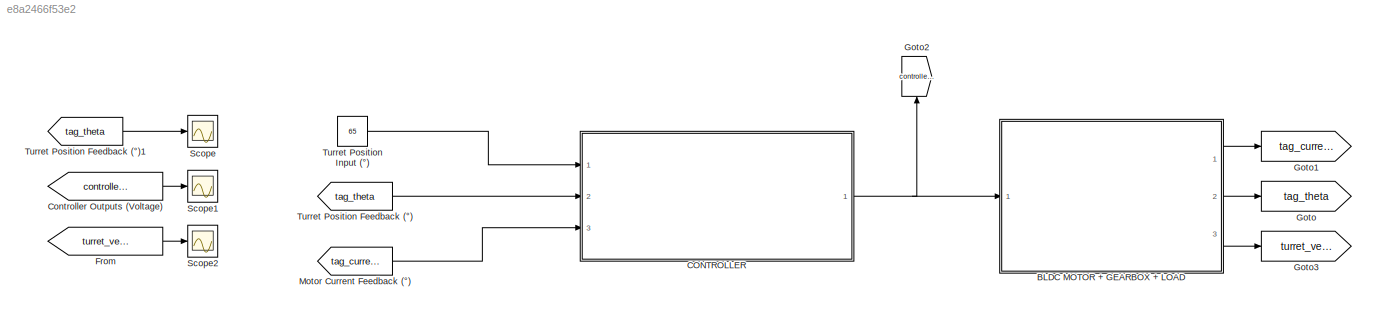
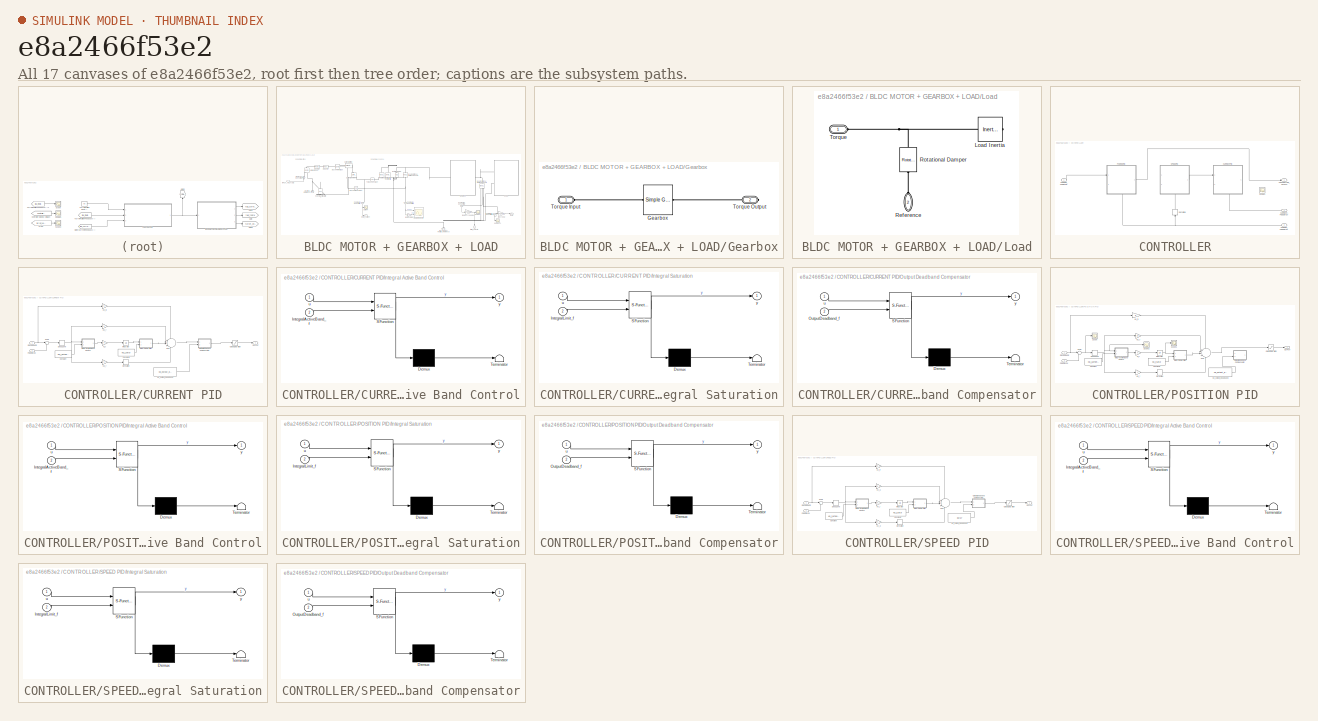
[diagram: thumbnail index - all 17 canvases of the model, root first then tree order]
MODEL slx_e8a2466f53e2
KIND model
CONFIG AbsTol = auto
CONFIG EnableMultiTasking = off
CONFIG FixedStep = auto
CONFIG InitFcn = load('param_motor.mat');\nload('param_controller.mat');
CONFIG MaxStep = auto
CONFIG MinStep = auto
CONFIG RelTol = 1e-3
CONFIG SampleTimeConstraint = Unconstrained
CONFIG SolverName = VariableStepAuto
CONFIG StartTime = 0.0
CONFIG StopTime = 20
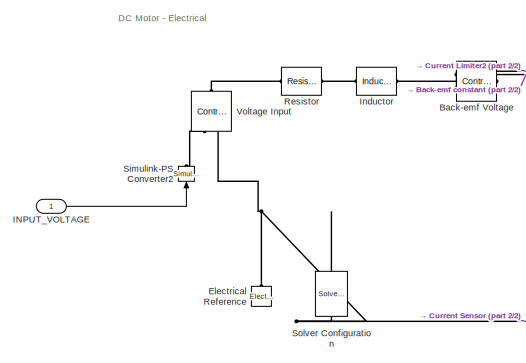
[diagram: BLDC MOTOR + GEARBOX + LOAD - part 1/2, top left region]
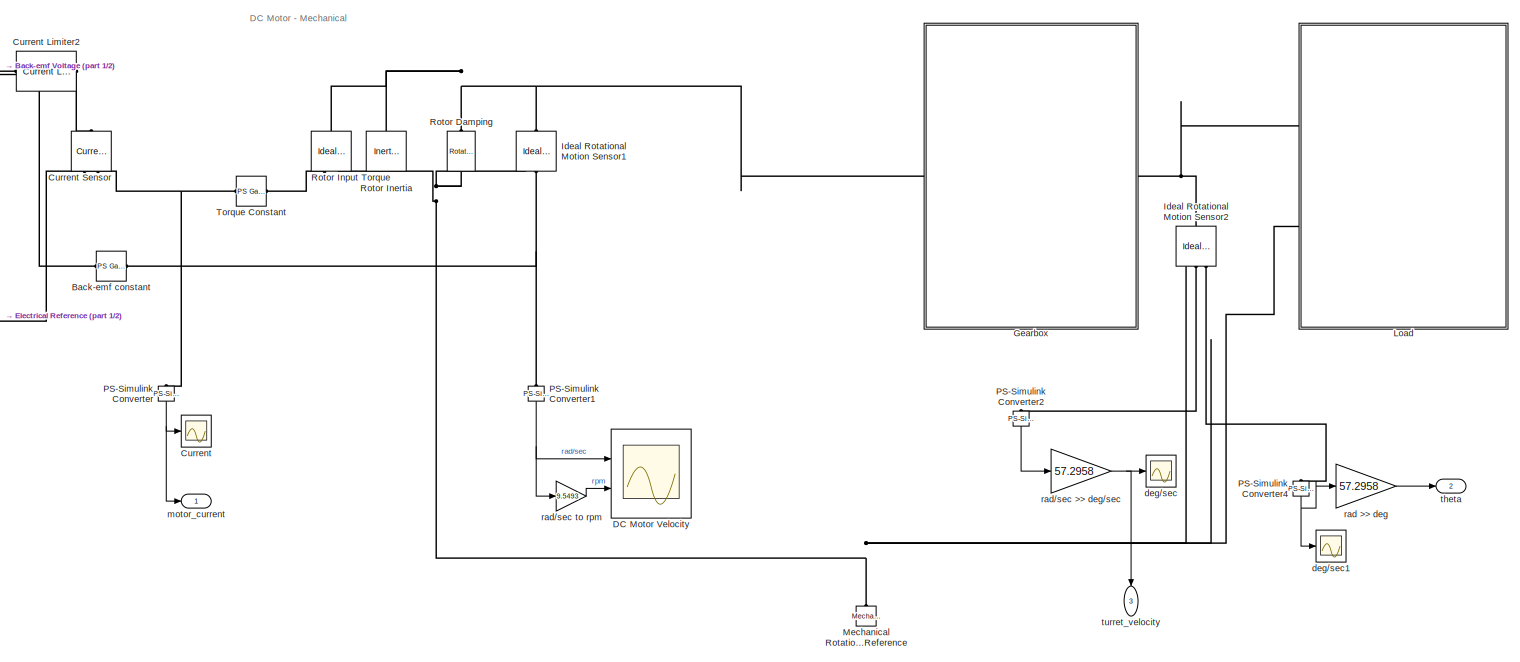
[diagram: BLDC MOTOR + GEARBOX + LOAD - part 2/2, most of the canvas]
BLOCK [SubSystem] BLDC MOTOR + GEARBOX + LOAD
  Ports = [1, 3]
  RequestExecContextInheritance = off
BLOCK [Reference] BLDC MOTOR + GEARBOX + LOAD/Back-emf Voltage  REF=fl_lib/Electrical/Electrical Sources/Controlled Voltage
Source
  NameLocation = top
  Ports = [0, 0, 0, 0, 0, 1, 2]
  SourceBlock = fl_lib/Electrical/Electrical Sources/Controlled Voltage\nSource
  SourceProductBaseCode = SS
  SourceType = Controlled Voltage\nSource
BLOCK [Reference] BLDC MOTOR + GEARBOX + LOAD/Back-emf constant  REF=fl_lib/Physical Signals/Functions/PS Gain
  Ports = [0, 0, 0, 0, 0, 1, 1]
  SourceBlock = fl_lib/Physical Signals/Functions/PS Gain
  SourceProductBaseCode = SS
  SourceType = PS Gain
BLOCK [Scope] BLDC MOTOR + GEARBOX + LOAD/Current
  Floating = off
  NumInputPorts = 1
  Ports = [1]
  ScopeSpecificationString = Simulink.scopes.TimeScopeBlockCfg('CurrentConfiguration', extmgr.ConfigurationSet(extmgr.Configuration('Core','General UI',true),extmgr.Configuration('Core','Source UI',true),extmgr.Configuration('Sources','WiredSimulink',true,'DataLoggingVariableName','ScopeData1'),extmgr.Configuration('Visuals','Time Domain',true,'SerializedDisplays',{struct('MinYLimReal','-100.01673','MaxYLimReal','100.02897','...<+1394ch>
BLOCK [Reference] BLDC MOTOR + GEARBOX + LOAD/Current Limiter2  REF=ee_lib/Semiconductors &
Converters/Current Limiter
  Ports = [0, 0, 0, 0, 0, 1, 1]
  SourceBlock = ee_lib/Semiconductors &\nConverters/Current Limiter
  SourceProductBaseCode = PS
  SourceType = Current Limiter
BLOCK [Reference] BLDC MOTOR + GEARBOX + LOAD/Current Sensor  REF=fl_lib/Electrical/Electrical Sensors/Current Sensor
  NameLocation = left
  Ports = [0, 0, 0, 0, 0, 1, 2]
  SourceBlock = fl_lib/Electrical/Electrical Sensors/Current Sensor
  SourceProductBaseCode = SS
  SourceType = Current Sensor
BLOCK [Scope] BLDC MOTOR + GEARBOX + LOAD/DC Motor Velocity
  Floating = off
  NumInputPorts = 2
  Ports = [2]
  ScopeSpecificationString = Simulink.scopes.TimeScopeBlockCfg('CurrentConfiguration', extmgr.ConfigurationSet(extmgr.Configuration('Core','General UI',true),extmgr.Configuration('Core','Source UI',true),extmgr.Configuration('Sources','WiredSimulink',true,'DataLoggingVariableName','ScopeData2'),extmgr.Configuration('Visuals','Time Domain',true,'SerializedDisplays',{struct('MinYLimReal','-2534.88002','MaxYLimReal','7708.88667'...<+1421ch>
BLOCK [Reference] BLDC MOTOR + GEARBOX + LOAD/Electrical Reference  REF=fl_lib/Electrical/Electrical Elements/Electrical Reference
  NameLocation = right
  Ports = [0, 0, 0, 0, 0, 1]
  SourceBlock = fl_lib/Electrical/Electrical Elements/Electrical Reference
  SourceProductBaseCode = SS
  SourceType = Electrical Reference
BLOCK [SubSystem] BLDC MOTOR + GEARBOX + LOAD/Gearbox
  Ports = [0, 0, 0, 0, 0, 1, 1]
  RequestExecContextInheritance = off
BLOCK [Reference] BLDC MOTOR + GEARBOX + LOAD/Gearbox/Gearbox  REF=sdl_lib/Gears/Simple Gear
  Ports = [0, 0, 0, 0, 0, 1, 1]
  SourceBlock = sdl_lib/Gears/Simple Gear
  SourceProductBaseCode = LD
  SourceType = Simple Gear
BLOCK [PMIOPort] BLDC MOTOR + GEARBOX + LOAD/Gearbox/Torque Input
  Side = Left
BLOCK [PMIOPort] BLDC MOTOR + GEARBOX + LOAD/Gearbox/Torque Output
  Port = 2
  Side = Right
BLOCK [Inport] BLDC MOTOR + GEARBOX + LOAD/INPUT_VOLTAGE
BLOCK [Reference] BLDC MOTOR + GEARBOX + LOAD/Ideal Rotational Motion Sensor1  REF=fl_lib/Mechanical/Mechanical Sensors/Ideal Rotational
Motion Sensor
  Ports = [0, 0, 0, 0, 0, 1, 3]
  SourceBlock = fl_lib/Mechanical/Mechanical Sensors/Ideal Rotational\nMotion Sensor
  SourceProductBaseCode = SS
  SourceType = Ideal Rotational\nMotion Sensor
BLOCK [Reference] BLDC MOTOR + GEARBOX + LOAD/Ideal Rotational Motion Sensor2  REF=fl_lib/Mechanical/Mechanical Sensors/Ideal Rotational
Motion Sensor
  Ports = [0, 0, 0, 0, 0, 1, 3]
  SourceBlock = fl_lib/Mechanical/Mechanical Sensors/Ideal Rotational\nMotion Sensor
  SourceProductBaseCode = SS
  SourceType = Ideal Rotational\nMotion Sensor
BLOCK [Reference] BLDC MOTOR + GEARBOX + LOAD/Inductor  REF=ee_lib/Passive/Inductor
  Ports = [0, 0, 0, 0, 0, 1, 1]
  SourceBlock = ee_lib/Passive/Inductor
  SourceProductBaseCode = PS
  SourceType = Inductor
BLOCK [SubSystem] BLDC MOTOR + GEARBOX + LOAD/Load
  Ports = [0, 0, 0, 0, 0, 2]
  RequestExecContextInheritance = off
BLOCK [Reference] BLDC MOTOR + GEARBOX + LOAD/Load/Load Inertia  REF=fl_lib/Mechanical/Rotational Elements/Inertia
  Ports = [0, 0, 0, 0, 0, 1]
  SourceBlock = fl_lib/Mechanical/Rotational Elements/Inertia
  SourceProductBaseCode = SS
  SourceType = Inertia
BLOCK [PMIOPort] BLDC MOTOR + GEARBOX + LOAD/Load/Reference
  NameLocation = right
  Port = 2
  Side = Left
BLOCK [Reference] BLDC MOTOR + GEARBOX + LOAD/Load/Rotational Damper  REF=sdl_lib/Couplings & Drives/Springs & Dampers/Rotational Damper
  NameLocation = left
  Ports = [0, 0, 0, 0, 0, 1, 1]
  SourceBlock = sdl_lib/Couplings & Drives/Springs & Dampers/Rotational Damper
  SourceProductBaseCode = LD
  SourceType = Rotational Damper
BLOCK [PMIOPort] BLDC MOTOR + GEARBOX + LOAD/Load/Torque
  Side = Left
BLOCK [Reference] BLDC MOTOR + GEARBOX + LOAD/Mechanical Rotational Reference  REF=fl_lib/Mechanical/Rotational Elements/Mechanical
Rotational Reference
  NameLocation = right
  Ports = [0, 0, 0, 0, 0, 1]
  SourceBlock = fl_lib/Mechanical/Rotational Elements/Mechanical\nRotational Reference
  SourceProductBaseCode = SS
  SourceType = Mechanical\nRotational Reference
BLOCK [Reference] BLDC MOTOR + GEARBOX + LOAD/PS-Simulink Converter  REF=nesl_utility/PS-Simulink
Converter
  NameLocation = left
  Ports = [0, 1, 0, 0, 0, 1]
  SourceBlock = nesl_utility/PS-Simulink\nConverter
  SourceProductBaseCode = PW,SS
  SourceType = PS-Simulink\nConverter
BLOCK [Reference] BLDC MOTOR + GEARBOX + LOAD/PS-Simulink Converter1  REF=nesl_utility/PS-Simulink
Converter
  NameLocation = left
  Ports = [0, 1, 0, 0, 0, 1]
  SourceBlock = nesl_utility/PS-Simulink\nConverter
  SourceProductBaseCode = PW,SS
  SourceType = PS-Simulink\nConverter
BLOCK [Reference] BLDC MOTOR + GEARBOX + LOAD/PS-Simulink Converter2  REF=nesl_utility/PS-Simulink
Converter
  NameLocation = left
  Ports = [0, 1, 0, 0, 0, 1]
  SourceBlock = nesl_utility/PS-Simulink\nConverter
  SourceProductBaseCode = PW,SS
  SourceType = PS-Simulink\nConverter
BLOCK [Reference] BLDC MOTOR + GEARBOX + LOAD/PS-Simulink Converter4  REF=nesl_utility/PS-Simulink
Converter
  NameLocation = left
  Ports = [0, 1, 0, 0, 0, 1]
  SourceBlock = nesl_utility/PS-Simulink\nConverter
  SourceProductBaseCode = PW,SS
  SourceType = PS-Simulink\nConverter
BLOCK [Reference] BLDC MOTOR + GEARBOX + LOAD/Resistor  REF=fl_lib/Electrical/Electrical Elements/Resistor
  Ports = [0, 0, 0, 0, 0, 1, 1]
  SourceBlock = fl_lib/Electrical/Electrical Elements/Resistor
  SourceProductBaseCode = SS
  SourceType = Resistor
BLOCK [Reference] BLDC MOTOR + GEARBOX + LOAD/Rotor Damping  REF=fl_lib/Mechanical/Rotational Elements/Rotational Damper
  NameLocation = top
  Ports = [0, 0, 0, 0, 0, 1, 1]
  SourceBlock = fl_lib/Mechanical/Rotational Elements/Rotational Damper
  SourceProductBaseCode = SS
  SourceType = Rotational Damper
BLOCK [Reference] BLDC MOTOR + GEARBOX + LOAD/Rotor Inertia  REF=fl_lib/Mechanical/Rotational Elements/Inertia
  Ports = [0, 0, 0, 0, 0, 1]
  SourceBlock = fl_lib/Mechanical/Rotational Elements/Inertia
  SourceProductBaseCode = SS
  SourceType = Inertia
BLOCK [Reference] BLDC MOTOR + GEARBOX + LOAD/Rotor Input Torque  REF=fl_lib/Mechanical/Mechanical Sources/Ideal Torque Source
  NameLocation = top
  Ports = [0, 0, 0, 0, 0, 1, 2]
  SourceBlock = fl_lib/Mechanical/Mechanical Sources/Ideal Torque Source
  SourceProductBaseCode = SS
  SourceType = Ideal Torque Source
BLOCK [Reference] BLDC MOTOR + GEARBOX + LOAD/Simulink-PS Converter2  REF=nesl_utility/Simulink-PS
Converter
  NameLocation = right
  Ports = [1, 0, 0, 0, 0, 0, 1]
  SourceBlock = nesl_utility/Simulink-PS\nConverter
  SourceProductBaseCode = PW,SS
  SourceType = Simulink-PS\nConverter
BLOCK [Reference] BLDC MOTOR + GEARBOX + LOAD/Solver Configuration  REF=nesl_utility/Solver
Configuration
  NameLocation = right
  Ports = [0, 0, 0, 0, 0, 0, 1]
  SourceBlock = nesl_utility/Solver\nConfiguration
  SourceProductBaseCode = PW,SS
  SourceType = Solver\nConfiguration
BLOCK [Reference] BLDC MOTOR + GEARBOX + LOAD/Torque Constant  REF=fl_lib/Physical Signals/Functions/PS Gain
  Ports = [0, 0, 0, 0, 0, 1, 1]
  SourceBlock = fl_lib/Physical Signals/Functions/PS Gain
  SourceProductBaseCode = SS
  SourceType = PS Gain
BLOCK [Reference] BLDC MOTOR + GEARBOX + LOAD/Voltage Input  REF=fl_lib/Electrical/Electrical Sources/Controlled Voltage
Source
  NameLocation = right
  Ports = [0, 0, 0, 0, 0, 1, 2]
  SourceBlock = fl_lib/Electrical/Electrical Sources/Controlled Voltage\nSource
  SourceProductBaseCode = SS
  SourceType = Controlled Voltage\nSource
BLOCK [Scope] BLDC MOTOR + GEARBOX + LOAD/deg//sec
  Floating = off
  NumInputPorts = 1
  Ports = [1]
  ScopeSpecificationString = Simulink.scopes.TimeScopeBlockCfg('CurrentConfiguration', extmgr.ConfigurationSet(extmgr.Configuration('Core','General UI',true),extmgr.Configuration('Core','Source UI',true),extmgr.Configuration('Sources','WiredSimulink',true),extmgr.Configuration('Visuals','Time Domain',true,'SerializedDisplays',{struct('MinYLimReal','-11.4743','MaxYLimReal','103.26868','YLabelReal','','MinYLimMag','0.00000','Ma...<+1417ch>
BLOCK [Scope] BLDC MOTOR + GEARBOX + LOAD/deg//sec1
  Floating = off
  NumInputPorts = 1
  Ports = [1]
  ScopeSpecificationString = Simulink.scopes.TimeScopeBlockCfg('CurrentConfiguration', extmgr.ConfigurationSet(extmgr.Configuration('Core','General UI',true),extmgr.Configuration('Core','Source UI',true),extmgr.Configuration('Sources','WiredSimulink',true,'DataLoggingVariableName','ScopeData10'),extmgr.Configuration('Visuals','Time Domain',true,'SerializedDisplays',{struct('MinYLimReal','-0.15273','MaxYLimReal','1.37457','YLa...<+1453ch>
BLOCK [Outport] BLDC MOTOR + GEARBOX + LOAD/motor_current
BLOCK [Gain] BLDC MOTOR + GEARBOX + LOAD/rad >> deg
  Gain = 57.2958
BLOCK [Gain] BLDC MOTOR + GEARBOX + LOAD/rad//sec >> deg//sec
  Gain = 57.2958
BLOCK [Gain] BLDC MOTOR + GEARBOX + LOAD/rad//sec to rpm
  Gain = 9.5493
BLOCK [Outport] BLDC MOTOR + GEARBOX + LOAD/theta
  Port = 2
BLOCK [Outport] BLDC MOTOR + GEARBOX + LOAD/turret_velocity
  Port = 3
BLOCK [SubSystem] CONTROLLER
  Ports = [3, 1]
  RequestExecContextInheritance = off
BLOCK [Outport] CONTROLLER/CONTROLLER_OUTPUT
BLOCK [SubSystem] CONTROLLER/CURRENT PID
  Commented = on
  NameLocation = top
  PortSchema = {"entries":[{"content":{"sides":[{"content":{"connectorIds":["In1"]},"type":"ConnectorPlacement.EquallySpacedRectSide","uuid":"40c65be9-b241-43d3-b74e-061528d6863f"},{"content":{"connectorIds":["Out1"],"side":"RIGHT"},"type":"ConnectorPlacement.EquallySpacedRectSide","uuid":"f0c37777-6186-40ca-93fa-111567e4da2a"},{"content":{"connectorIds":[],"side":"TOP"},"type":"ConnectorPlacement.EquallySpacedR...<+389ch>  <repeated x3 — deduplicated; at blocks: CURRENT PID, POSITION PID, SPEED PID>
  Ports = [2, 1]
  RequestExecContextInheritance = off
BLOCK [Constant] CONTROLLER/CURRENT PID/Constant
  Value = Kp_i_active_band
BLOCK [Constant] CONTROLLER/CURRENT PID/Constant1
  Value = Kp_i_satur
BLOCK [DeadZone] CONTROLLER/CURRENT PID/Dead Zone
BLOCK [Derivative] CONTROLLER/CURRENT PID/Derivative
BLOCK [Inport] CONTROLLER/CURRENT PID/FEEDBACK
  Port = 2
BLOCK [SubSystem] CONTROLLER/CURRENT PID/Integral Active Band Control
  ErrorFcn = Stateflow.Translate.translate
  PermitHierarchicalResolution = ExplicitOnly
  Ports = [2, 1]
  RequestExecContextInheritance = off
  SFBlockType = MATLAB Function
  TreatAsAtomicUnit = on
BLOCK [Demux] CONTROLLER/CURRENT PID/Integral Active Band Control/ Demux 
  Outputs = 1
  Ports = [1, 1]
BLOCK [S-Function] CONTROLLER/CURRENT PID/Integral Active Band Control/ SFunction 
  EnableBusSupport = on
  FunctionName = sf_sfun
  PortCounts = [2 2]
  Ports = [2, 2]
  SFcnIsStateOwnerBlock = off
  SFunctionDeploymentMode = off
  Tag = Stateflow S-Function 10
BLOCK [Terminator] CONTROLLER/CURRENT PID/Integral Active Band Control/ Terminator 
BLOCK [Inport] CONTROLLER/CURRENT PID/Integral Active Band Control/IntegralActiveBand_f
  Port = 2
BLOCK [Inport] CONTROLLER/CURRENT PID/Integral Active Band Control/u
BLOCK [Outport] CONTROLLER/CURRENT PID/Integral Active Band Control/y
BLOCK [SubSystem] CONTROLLER/CURRENT PID/Integral Saturation
  ErrorFcn = Stateflow.Translate.translate
  PermitHierarchicalResolution = ExplicitOnly
  Ports = [2, 1]
  RequestExecContextInheritance = off
  SFBlockType = MATLAB Function
  TreatAsAtomicUnit = on
BLOCK [Demux] CONTROLLER/CURRENT PID/Integral Saturation/ Demux 
  Outputs = 1
  Ports = [1, 1]
BLOCK [S-Function] CONTROLLER/CURRENT PID/Integral Saturation/ SFunction 
  EnableBusSupport = on
  FunctionName = sf_sfun
  PortCounts = [2 2]
  Ports = [2, 2]
  SFcnIsStateOwnerBlock = off
  SFunctionDeploymentMode = off
  Tag = Stateflow S-Function 11
BLOCK [Terminator] CONTROLLER/CURRENT PID/Integral Saturation/ Terminator 
BLOCK [Inport] CONTROLLER/CURRENT PID/Integral Saturation/IntegralLimit_f
  Port = 2
BLOCK [Inport] CONTROLLER/CURRENT PID/Integral Saturation/u
BLOCK [Outport] CONTROLLER/CURRENT PID/Integral Saturation/y
BLOCK [Integrator] CONTROLLER/CURRENT PID/Integrator
  Ports = [1, 1]
BLOCK [Gain] CONTROLLER/CURRENT PID/Kd_f
BLOCK [Gain] CONTROLLER/CURRENT PID/Ki_f
BLOCK [Gain] CONTROLLER/CURRENT PID/Kp_f
BLOCK [Gain] CONTROLLER/CURRENT PID/Kp_f1
BLOCK [Constant] CONTROLLER/CURRENT PID/Kp_output_deadband
  Value = Kp_output_deadband
BLOCK [Outport] CONTROLLER/CURRENT PID/OUTPUT
BLOCK [SubSystem] CONTROLLER/CURRENT PID/Output Deadband Compensator
  ErrorFcn = Stateflow.Translate.translate
  PermitHierarchicalResolution = ExplicitOnly
  Ports = [2, 1]
  RequestExecContextInheritance = off
  SFBlockType = MATLAB Function
  TreatAsAtomicUnit = on
BLOCK [Demux] CONTROLLER/CURRENT PID/Output Deadband Compensator/ Demux 
  Outputs = 1
  Ports = [1, 1]
BLOCK [S-Function] CONTROLLER/CURRENT PID/Output Deadband Compensator/ SFunction 
  EnableBusSupport = on
  FunctionName = sf_sfun
  PortCounts = [2 2]
  Ports = [2, 2]
  SFcnIsStateOwnerBlock = off
  SFunctionDeploymentMode = off
  Tag = Stateflow S-Function 12
BLOCK [Terminator] CONTROLLER/CURRENT PID/Output Deadband Compensator/ Terminator 
BLOCK [Inport] CONTROLLER/CURRENT PID/Output Deadband Compensator/OutputDeadband_f
  Port = 2
BLOCK [Inport] CONTROLLER/CURRENT PID/Output Deadband Compensator/u
BLOCK [Outport] CONTROLLER/CURRENT PID/Output Deadband Compensator/y
BLOCK [Saturate] CONTROLLER/CURRENT PID/Output Saturation
BLOCK [Inport] CONTROLLER/CURRENT PID/REFERENCE
BLOCK [Sum] CONTROLLER/CURRENT PID/Sum
  Inputs = +++|+
  Ports = [4, 1]
BLOCK [Sum] CONTROLLER/CURRENT PID/Sum1
  Inputs = |+-
  Ports = [2, 1]
BLOCK [Inport] CONTROLLER/CURRENT_FEEDBACK
  Port = 3
BLOCK [Derivative] CONTROLLER/Derivative
  Commented = on
  NameLocation = right
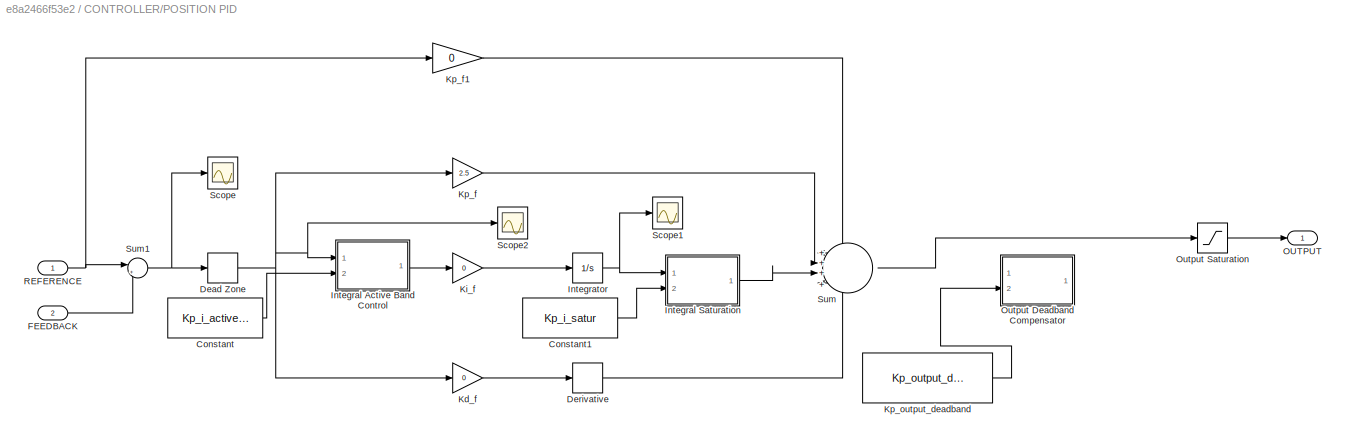
BLOCK [SubSystem] CONTROLLER/POSITION PID
  NameLocation = top
  Ports = [2, 1]
  RequestExecContextInheritance = off
BLOCK [Constant] CONTROLLER/POSITION PID/Constant
  Value = Kp_i_active_band
BLOCK [Constant] CONTROLLER/POSITION PID/Constant1
  Value = Kp_i_satur
BLOCK [DeadZone] CONTROLLER/POSITION PID/Dead Zone
BLOCK [Derivative] CONTROLLER/POSITION PID/Derivative
BLOCK [Inport] CONTROLLER/POSITION PID/FEEDBACK
  Port = 2
BLOCK [SubSystem] CONTROLLER/POSITION PID/Integral Active Band Control
  ErrorFcn = Stateflow.Translate.translate
  PermitHierarchicalResolution = ExplicitOnly
  Ports = [2, 1]
  RequestExecContextInheritance = off
  SFBlockType = MATLAB Function
  TreatAsAtomicUnit = on
BLOCK [Demux] CONTROLLER/POSITION PID/Integral Active Band Control/ Demux 
  Outputs = 1
  Ports = [1, 1]
BLOCK [S-Function] CONTROLLER/POSITION PID/Integral Active Band Control/ SFunction 
  EnableBusSupport = on
  FunctionName = sf_sfun
  PortCounts = [2 2]
  Ports = [2, 2]
  SFcnIsStateOwnerBlock = off
  SFunctionDeploymentMode = off
  Tag = Stateflow S-Function 4
BLOCK [Terminator] CONTROLLER/POSITION PID/Integral Active Band Control/ Terminator 
BLOCK [Inport] CONTROLLER/POSITION PID/Integral Active Band Control/IntegralActiveBand_f
  Port = 2
BLOCK [Inport] CONTROLLER/POSITION PID/Integral Active Band Control/u
BLOCK [Outport] CONTROLLER/POSITION PID/Integral Active Band Control/y
BLOCK [SubSystem] CONTROLLER/POSITION PID/Integral Saturation
  ErrorFcn = Stateflow.Translate.translate
  PermitHierarchicalResolution = ExplicitOnly
  Ports = [2, 1]
  RequestExecContextInheritance = off
  SFBlockType = MATLAB Function
  TreatAsAtomicUnit = on
BLOCK [Demux] CONTROLLER/POSITION PID/Integral Saturation/ Demux 
  Outputs = 1
  Ports = [1, 1]
BLOCK [S-Function] CONTROLLER/POSITION PID/Integral Saturation/ SFunction 
  EnableBusSupport = on
  FunctionName = sf_sfun
  PortCounts = [2 2]
  Ports = [2, 2]
  SFcnIsStateOwnerBlock = off
  SFunctionDeploymentMode = off
  Tag = Stateflow S-Function 5
BLOCK [Terminator] CONTROLLER/POSITION PID/Integral Saturation/ Terminator 
BLOCK [Inport] CONTROLLER/POSITION PID/Integral Saturation/IntegralLimit_f
  Port = 2
BLOCK [Inport] CONTROLLER/POSITION PID/Integral Saturation/u
BLOCK [Outport] CONTROLLER/POSITION PID/Integral Saturation/y
BLOCK [Integrator] CONTROLLER/POSITION PID/Integrator
  Ports = [1, 1]
BLOCK [Gain] CONTROLLER/POSITION PID/Kd_f
  Gain = 0
BLOCK [Gain] CONTROLLER/POSITION PID/Ki_f
  Gain = 0
BLOCK [Gain] CONTROLLER/POSITION PID/Kp_f
  Gain = 2.5
BLOCK [Gain] CONTROLLER/POSITION PID/Kp_f1
  Gain = 0
BLOCK [Constant] CONTROLLER/POSITION PID/Kp_output_deadband
  Value = Kp_output_deadband
BLOCK [Outport] CONTROLLER/POSITION PID/OUTPUT
BLOCK [SubSystem] CONTROLLER/POSITION PID/Output Deadband Compensator
  ErrorFcn = Stateflow.Translate.translate
  PermitHierarchicalResolution = ExplicitOnly
  Ports = [2, 1]
  RequestExecContextInheritance = off
  SFBlockType = MATLAB Function
  TreatAsAtomicUnit = on
BLOCK [Demux] CONTROLLER/POSITION PID/Output Deadband Compensator/ Demux 
  Outputs = 1
  Ports = [1, 1]
BLOCK [S-Function] CONTROLLER/POSITION PID/Output Deadband Compensator/ SFunction 
  EnableBusSupport = on
  FunctionName = sf_sfun
  PortCounts = [2 2]
  Ports = [2, 2]
  SFcnIsStateOwnerBlock = off
  SFunctionDeploymentMode = off
  Tag = Stateflow S-Function 6
BLOCK [Terminator] CONTROLLER/POSITION PID/Output Deadband Compensator/ Terminator 
BLOCK [Inport] CONTROLLER/POSITION PID/Output Deadband Compensator/OutputDeadband_f
  Port = 2
BLOCK [Inport] CONTROLLER/POSITION PID/Output Deadband Compensator/u
BLOCK [Outport] CONTROLLER/POSITION PID/Output Deadband Compensator/y
BLOCK [Saturate] CONTROLLER/POSITION PID/Output Saturation
  LowerLimit = -28
  UpperLimit = 28
BLOCK [Inport] CONTROLLER/POSITION PID/REFERENCE
BLOCK [Scope] CONTROLLER/POSITION PID/Scope
  Floating = off
  NumInputPorts = 1
  Ports = [1]
  ScopeSpecificationString = Simulink.scopes.TimeScopeBlockCfg('CurrentConfiguration', extmgr.ConfigurationSet(extmgr.Configuration('Core','General UI',true),extmgr.Configuration('Core','Source UI',true),extmgr.Configuration('Sources','WiredSimulink',true,'DataLoggingVariableName','ScopeData3'),extmgr.Configuration('Visuals','Time Domain',true,'SerializedDisplays',{struct('MinYLimReal','-1712.18426','MaxYLimReal','4634.68714'...<+1385ch>
BLOCK [Scope] CONTROLLER/POSITION PID/Scope1
  Floating = off
  NumInputPorts = 1
  Ports = [1]
  ScopeSpecificationString = Simulink.scopes.TimeScopeBlockCfg('CurrentConfiguration', extmgr.ConfigurationSet(extmgr.Configuration('Core','General UI',true),extmgr.Configuration('Core','Source UI',true),extmgr.Configuration('Sources','WiredSimulink',true,'DataLoggingVariableName','ScopeData4'),extmgr.Configuration('Visuals','Time Domain',true,'SerializedDisplays',{struct('MinYLimReal','-1.00000','MaxYLimReal','1.00000','YLab...<+1369ch>
BLOCK [Scope] CONTROLLER/POSITION PID/Scope2
  Floating = off
  NumInputPorts = 1
  Ports = [1]
  ScopeSpecificationString = Simulink.scopes.TimeScopeBlockCfg('CurrentConfiguration', extmgr.ConfigurationSet(extmgr.Configuration('Core','General UI',true),extmgr.Configuration('Core','Source UI',true),extmgr.Configuration('Sources','WiredSimulink',true,'DataLoggingVariableName','ScopeData5'),extmgr.Configuration('Visuals','Time Domain',true,'SerializedDisplays',{struct('MinYLimReal','-1711.55926','MaxYLimReal','4634.06214'...<+1390ch>
BLOCK [Sum] CONTROLLER/POSITION PID/Sum
  Inputs = +++|+
  Ports = [4, 1]
BLOCK [Sum] CONTROLLER/POSITION PID/Sum1
  Inputs = |+-
  Ports = [2, 1]
BLOCK [Inport] CONTROLLER/POSITION_COMMAND
BLOCK [Inport] CONTROLLER/POSITION_FEEDBACK
  Port = 2
BLOCK [SubSystem] CONTROLLER/SPEED PID
  Commented = on
  NameLocation = top
  Ports = [2, 1]
  RequestExecContextInheritance = off
BLOCK [Constant] CONTROLLER/SPEED PID/Constant
  Value = Kp_i_active_band
BLOCK [Constant] CONTROLLER/SPEED PID/Constant1
  Value = Kp_i_satur
BLOCK [DeadZone] CONTROLLER/SPEED PID/Dead Zone
BLOCK [Derivative] CONTROLLER/SPEED PID/Derivative
BLOCK [Inport] CONTROLLER/SPEED PID/FEEDBACK
  Port = 2
BLOCK [SubSystem] CONTROLLER/SPEED PID/Integral Active Band Control
  ErrorFcn = Stateflow.Translate.translate
  PermitHierarchicalResolution = ExplicitOnly
  Ports = [2, 1]
  RequestExecContextInheritance = off
  SFBlockType = MATLAB Function
  TreatAsAtomicUnit = on
BLOCK [Demux] CONTROLLER/SPEED PID/Integral Active Band Control/ Demux 
  Outputs = 1
  Ports = [1, 1]
BLOCK [S-Function] CONTROLLER/SPEED PID/Integral Active Band Control/ SFunction 
  EnableBusSupport = on
  FunctionName = sf_sfun
  PortCounts = [2 2]
  Ports = [2, 2]
  SFcnIsStateOwnerBlock = off
  SFunctionDeploymentMode = off
  Tag = Stateflow S-Function 7
BLOCK [Terminator] CONTROLLER/SPEED PID/Integral Active Band Control/ Terminator 
BLOCK [Inport] CONTROLLER/SPEED PID/Integral Active Band Control/IntegralActiveBand_f
  Port = 2
BLOCK [Inport] CONTROLLER/SPEED PID/Integral Active Band Control/u
BLOCK [Outport] CONTROLLER/SPEED PID/Integral Active Band Control/y
BLOCK [SubSystem] CONTROLLER/SPEED PID/Integral Saturation
  ErrorFcn = Stateflow.Translate.translate
  PermitHierarchicalResolution = ExplicitOnly
  Ports = [2, 1]
  RequestExecContextInheritance = off
  SFBlockType = MATLAB Function
  TreatAsAtomicUnit = on
BLOCK [Demux] CONTROLLER/SPEED PID/Integral Saturation/ Demux 
  Outputs = 1
  Ports = [1, 1]
BLOCK [S-Function] CONTROLLER/SPEED PID/Integral Saturation/ SFunction 
  EnableBusSupport = on
  FunctionName = sf_sfun
  PortCounts = [2 2]
  Ports = [2, 2]
  SFcnIsStateOwnerBlock = off
  SFunctionDeploymentMode = off
  Tag = Stateflow S-Function 8
BLOCK [Terminator] CONTROLLER/SPEED PID/Integral Saturation/ Terminator 
BLOCK [Inport] CONTROLLER/SPEED PID/Integral Saturation/IntegralLimit_f
  Port = 2
BLOCK [Inport] CONTROLLER/SPEED PID/Integral Saturation/u
BLOCK [Outport] CONTROLLER/SPEED PID/Integral Saturation/y
BLOCK [Integrator] CONTROLLER/SPEED PID/Integrator
  Ports = [1, 1]
BLOCK [Constant] CONTROLLER/SPEED PID/Kp_output_deadband
  Value = 80/57
BLOCK [Gain] CONTROLLER/SPEED PID/Kv_d
  Gain = Kv_d
BLOCK [Gain] CONTROLLER/SPEED PID/Kv_ff
  Gain = Kv_ff
BLOCK [Gain] CONTROLLER/SPEED PID/Kv_i
  Gain = Kv_i
BLOCK [Gain] CONTROLLER/SPEED PID/Kv_p
  Gain = Kv_p
BLOCK [Outport] CONTROLLER/SPEED PID/OUTPUT
BLOCK [SubSystem] CONTROLLER/SPEED PID/Output Deadband Compensator
  ErrorFcn = Stateflow.Translate.translate
  PermitHierarchicalResolution = ExplicitOnly
  Ports = [2, 1]
  RequestExecContextInheritance = off
  SFBlockType = MATLAB Function
  TreatAsAtomicUnit = on
BLOCK [Demux] CONTROLLER/SPEED PID/Output Deadband Compensator/ Demux 
  Outputs = 1
  Ports = [1, 1]
BLOCK [S-Function] CONTROLLER/SPEED PID/Output Deadband Compensator/ SFunction 
  EnableBusSupport = on
  FunctionName = sf_sfun
  PortCounts = [2 2]
  Ports = [2, 2]
  SFcnIsStateOwnerBlock = off
  SFunctionDeploymentMode = off
  Tag = Stateflow S-Function 9
BLOCK [Terminator] CONTROLLER/SPEED PID/Output Deadband Compensator/ Terminator 
BLOCK [Inport] CONTROLLER/SPEED PID/Output Deadband Compensator/OutputDeadband_f
  Port = 2
BLOCK [Inport] CONTROLLER/SPEED PID/Output Deadband Compensator/u
BLOCK [Outport] CONTROLLER/SPEED PID/Output Deadband Compensator/y
BLOCK [Saturate] CONTROLLER/SPEED PID/Output Saturation
  LowerLimit = 0.01
  UpperLimit = Kv_output_saturation_max
BLOCK [Inport] CONTROLLER/SPEED PID/REFERENCE
BLOCK [Sum] CONTROLLER/SPEED PID/Sum
  Inputs = +++|+
  Ports = [4, 1]
BLOCK [Sum] CONTROLLER/SPEED PID/Sum1
  Inputs = |+-
  Ports = [2, 1]
BLOCK [Scope] CONTROLLER/Scope1
  Floating = off
  NumInputPorts = 1
  Ports = [1]
  ScopeSpecificationString = Simulink.scopes.TimeScopeBlockCfg('CurrentConfiguration', extmgr.ConfigurationSet(extmgr.Configuration('Core','General UI',true),extmgr.Configuration('Core','Source UI',true),extmgr.Configuration('Sources','WiredSimulink',true,'DataLoggingVariableName','ScopeData7'),extmgr.Configuration('Visuals','Time Domain',true,'SerializedDisplays',{struct('MinYLimReal','-0.04586','MaxYLimReal','0.41278','YLab...<+1369ch>
BLOCK [From] Controller Outputs (Voltage)
  GotoTag = controller_output
BLOCK [From] From
  GotoTag = turret_velocity
BLOCK [Goto] Goto
  GotoTag = tag_theta
BLOCK [Goto] Goto1
  GotoTag = tag_current
BLOCK [Goto] Goto2
  GotoTag = controller_output
  NameLocation = right
BLOCK [Goto] Goto3
  GotoTag = turret_velocity
BLOCK [From] Motor Current Feedback (°)
  GotoTag = tag_current
BLOCK [Scope] Scope
  Floating = off
  NumInputPorts = 1
  Ports = [1]
  ScopeSpecificationString = Simulink.scopes.TimeScopeBlockCfg('CurrentConfiguration', extmgr.ConfigurationSet(extmgr.Configuration('Core','General UI',true),extmgr.Configuration('Core','Source UI',true),extmgr.Configuration('Sources','WiredSimulink',true,'DataLoggingVariableName','ScopeData6'),extmgr.Configuration('Visuals','Time Domain',true,'SerializedDisplays',{struct('MinYLimReal','-8.66211','MaxYLimReal','77.95902','YLa...<+1414ch>
BLOCK [Scope] Scope1
  Floating = off
  NumInputPorts = 1
  Ports = [1]
  ScopeSpecificationString = Simulink.scopes.TimeScopeBlockCfg('CurrentConfiguration', extmgr.ConfigurationSet(extmgr.Configuration('Core','General UI',true),extmgr.Configuration('Core','Source UI',true),extmgr.Configuration('Sources','WiredSimulink',true,'DataLoggingVariableName','ScopeData1'),extmgr.Configuration('Visuals','Time Domain',true,'SerializedDisplays',{struct('MinYLimReal','-14.1788','MaxYLimReal','32.68653','YLa...<+1373ch>
BLOCK [Scope] Scope2
  Floating = off
  NumInputPorts = 1
  Ports = [1]
  ScopeSpecificationString = Simulink.scopes.TimeScopeBlockCfg('CurrentConfiguration', extmgr.ConfigurationSet(extmgr.Configuration('Core','General UI',true),extmgr.Configuration('Core','Source UI',true),extmgr.Configuration('Sources','WiredSimulink',true,'DataLoggingVariableName','ScopeData2'),extmgr.Configuration('Visuals','Time Domain',true,'SerializedDisplays',{struct('MinYLimReal','-34.8808','MaxYLimReal','105.86892','YL...<+1396ch>
BLOCK [From] Turret Position Feedback (°)
  GotoTag = tag_theta
BLOCK [From] Turret Position Feedback (°)1
  GotoTag = tag_theta
BLOCK [Constant] Turret Position Input (°)
  Value = 65
ANNOTATION BLDC MOTOR + GEARBOX + LOAD: DC Motor - Electrical
ANNOTATION BLDC MOTOR + GEARBOX + LOAD: DC Motor - Mechanical
LINE BLDC MOTOR + GEARBOX + LOAD/INPUT_VOLTAGE:1 -> BLDC MOTOR + GEARBOX + LOAD/Simulink-PS Converter2:1
NET BLDC MOTOR + GEARBOX + LOAD/PS-Simulink Converter1:1 -> BLDC MOTOR + GEARBOX + LOAD/DC Motor Velocity:1, BLDC MOTOR + GEARBOX + LOAD/rad//sec to rpm:1
LINE BLDC MOTOR + GEARBOX + LOAD/PS-Simulink Converter2:1 -> BLDC MOTOR + GEARBOX + LOAD/rad//sec >> deg//sec:1
NET BLDC MOTOR + GEARBOX + LOAD/PS-Simulink Converter4:1 -> BLDC MOTOR + GEARBOX + LOAD/deg//sec1:1, BLDC MOTOR + GEARBOX + LOAD/rad >> deg:1
NET BLDC MOTOR + GEARBOX + LOAD/PS-Simulink Converter:1 -> BLDC MOTOR + GEARBOX + LOAD/Current:1, BLDC MOTOR + GEARBOX + LOAD/motor_current:1
LINE BLDC MOTOR + GEARBOX + LOAD/rad >> deg:1 -> BLDC MOTOR + GEARBOX + LOAD/theta:1
NET BLDC MOTOR + GEARBOX + LOAD/rad//sec >> deg//sec:1 -> BLDC MOTOR + GEARBOX + LOAD/deg//sec:1, BLDC MOTOR + GEARBOX + LOAD/turret_velocity:1
LINE BLDC MOTOR + GEARBOX + LOAD/rad//sec to rpm:1 -> BLDC MOTOR + GEARBOX + LOAD/DC Motor Velocity:2
LINE BLDC MOTOR + GEARBOX + LOAD:1 -> Goto1:1
LINE BLDC MOTOR + GEARBOX + LOAD:2 -> Goto:1
LINE BLDC MOTOR + GEARBOX + LOAD:3 -> Goto3:1
LINE CONTROLLER/CURRENT PID/Constant1:1 -> CONTROLLER/CURRENT PID/Integral Saturation:2
LINE CONTROLLER/CURRENT PID/Constant:1 -> CONTROLLER/CURRENT PID/Integral Active Band Control:2
NET CONTROLLER/CURRENT PID/Dead Zone:1 -> CONTROLLER/CURRENT PID/Integral Active Band Control:1, CONTROLLER/CURRENT PID/Kd_f:1, CONTROLLER/CURRENT PID/Kp_f:1
LINE CONTROLLER/CURRENT PID/Derivative:1 -> CONTROLLER/CURRENT PID/Sum:4
LINE CONTROLLER/CURRENT PID/FEEDBACK:1 -> CONTROLLER/CURRENT PID/Sum1:2
LINE CONTROLLER/CURRENT PID/Integral Active Band Control:1 -> CONTROLLER/CURRENT PID/Ki_f:1
LINE CONTROLLER/CURRENT PID/Integral Saturation:1 -> CONTROLLER/CURRENT PID/Sum:3
LINE CONTROLLER/CURRENT PID/Integrator:1 -> CONTROLLER/CURRENT PID/Integral Saturation:1
LINE CONTROLLER/CURRENT PID/Kd_f:1 -> CONTROLLER/CURRENT PID/Derivative:1
LINE CONTROLLER/CURRENT PID/Ki_f:1 -> CONTROLLER/CURRENT PID/Integrator:1
LINE CONTROLLER/CURRENT PID/Kp_f1:1 -> CONTROLLER/CURRENT PID/Sum:1
LINE CONTROLLER/CURRENT PID/Kp_f:1 -> CONTROLLER/CURRENT PID/Sum:2
LINE CONTROLLER/CURRENT PID/Kp_output_deadband:1 -> CONTROLLER/CURRENT PID/Output Deadband Compensator:2
LINE CONTROLLER/CURRENT PID/Output Deadband Compensator:1 -> CONTROLLER/CURRENT PID/Output Saturation:1
LINE CONTROLLER/CURRENT PID/Output Saturation:1 -> CONTROLLER/CURRENT PID/OUTPUT:1
NET CONTROLLER/CURRENT PID/REFERENCE:1 -> CONTROLLER/CURRENT PID/Kp_f1:1, CONTROLLER/CURRENT PID/Sum1:1
LINE CONTROLLER/CURRENT PID/Sum1:1 -> CONTROLLER/CURRENT PID/Dead Zone:1
LINE CONTROLLER/CURRENT PID/Sum:1 -> CONTROLLER/CURRENT PID/Output Deadband Compensator:1
LINE CONTROLLER/CURRENT_FEEDBACK:1 -> CONTROLLER/CURRENT PID:2
LINE CONTROLLER/Derivative:1 -> CONTROLLER/SPEED PID:2
LINE CONTROLLER/POSITION PID/Constant1:1 -> CONTROLLER/POSITION PID/Integral Saturation:2
LINE CONTROLLER/POSITION PID/Constant:1 -> CONTROLLER/POSITION PID/Integral Active Band Control:2
NET CONTROLLER/POSITION PID/Dead Zone:1 -> CONTROLLER/POSITION PID/Integral Active Band Control:1, CONTROLLER/POSITION PID/Kd_f:1, CONTROLLER/POSITION PID/Kp_f:1, CONTROLLER/POSITION PID/Scope2:1
LINE CONTROLLER/POSITION PID/Derivative:1 -> CONTROLLER/POSITION PID/Sum:4
LINE CONTROLLER/POSITION PID/FEEDBACK:1 -> CONTROLLER/POSITION PID/Sum1:2
LINE CONTROLLER/POSITION PID/Integral Active Band Control:1 -> CONTROLLER/POSITION PID/Ki_f:1
LINE CONTROLLER/POSITION PID/Integral Saturation:1 -> CONTROLLER/POSITION PID/Sum:3
NET CONTROLLER/POSITION PID/Integrator:1 -> CONTROLLER/POSITION PID/Integral Saturation:1, CONTROLLER/POSITION PID/Scope1:1
LINE CONTROLLER/POSITION PID/Kd_f:1 -> CONTROLLER/POSITION PID/Derivative:1
LINE CONTROLLER/POSITION PID/Ki_f:1 -> CONTROLLER/POSITION PID/Integrator:1
LINE CONTROLLER/POSITION PID/Kp_f1:1 -> CONTROLLER/POSITION PID/Sum:1
LINE CONTROLLER/POSITION PID/Kp_f:1 -> CONTROLLER/POSITION PID/Sum:2
LINE CONTROLLER/POSITION PID/Kp_output_deadband:1 -> CONTROLLER/POSITION PID/Output Deadband Compensator:2
LINE CONTROLLER/POSITION PID/Output Saturation:1 -> CONTROLLER/POSITION PID/OUTPUT:1
NET CONTROLLER/POSITION PID/REFERENCE:1 -> CONTROLLER/POSITION PID/Kp_f1:1, CONTROLLER/POSITION PID/Sum1:1
NET CONTROLLER/POSITION PID/Sum1:1 -> CONTROLLER/POSITION PID/Dead Zone:1, CONTROLLER/POSITION PID/Scope:1
LINE CONTROLLER/POSITION PID/Sum:1 -> CONTROLLER/POSITION PID/Output Saturation:1
LINE CONTROLLER/POSITION PID:1 -> CONTROLLER/CONTROLLER_OUTPUT:1
LINE CONTROLLER/POSITION_COMMAND:1 -> CONTROLLER/POSITION PID:1
NET CONTROLLER/POSITION_FEEDBACK:1 -> CONTROLLER/Derivative:1, CONTROLLER/POSITION PID:2
LINE CONTROLLER/SPEED PID/Constant1:1 -> CONTROLLER/SPEED PID/Integral Saturation:2
LINE CONTROLLER/SPEED PID/Constant:1 -> CONTROLLER/SPEED PID/Integral Active Band Control:2
NET CONTROLLER/SPEED PID/Dead Zone:1 -> CONTROLLER/SPEED PID/Integral Active Band Control:1, CONTROLLER/SPEED PID/Kv_d:1, CONTROLLER/SPEED PID/Kv_p:1
LINE CONTROLLER/SPEED PID/Derivative:1 -> CONTROLLER/SPEED PID/Sum:4
LINE CONTROLLER/SPEED PID/FEEDBACK:1 -> CONTROLLER/SPEED PID/Sum1:2
LINE CONTROLLER/SPEED PID/Integral Active Band Control:1 -> CONTROLLER/SPEED PID/Kv_i:1
LINE CONTROLLER/SPEED PID/Integral Saturation:1 -> CONTROLLER/SPEED PID/Sum:3
LINE CONTROLLER/SPEED PID/Integrator:1 -> CONTROLLER/SPEED PID/Integral Saturation:1
LINE CONTROLLER/SPEED PID/Kp_output_deadband:1 -> CONTROLLER/SPEED PID/Output Deadband Compensator:2
LINE CONTROLLER/SPEED PID/Kv_d:1 -> CONTROLLER/SPEED PID/Derivative:1
LINE CONTROLLER/SPEED PID/Kv_ff:1 -> CONTROLLER/SPEED PID/Sum:1
LINE CONTROLLER/SPEED PID/Kv_i:1 -> CONTROLLER/SPEED PID/Integrator:1
LINE CONTROLLER/SPEED PID/Kv_p:1 -> CONTROLLER/SPEED PID/Sum:2
LINE CONTROLLER/SPEED PID/Output Deadband Compensator:1 -> CONTROLLER/SPEED PID/Output Saturation:1
LINE CONTROLLER/SPEED PID/Output Saturation:1 -> CONTROLLER/SPEED PID/OUTPUT:1
NET CONTROLLER/SPEED PID/REFERENCE:1 -> CONTROLLER/SPEED PID/Kv_ff:1, CONTROLLER/SPEED PID/Sum1:1
LINE CONTROLLER/SPEED PID/Sum1:1 -> CONTROLLER/SPEED PID/Dead Zone:1
LINE CONTROLLER/SPEED PID/Sum:1 -> CONTROLLER/SPEED PID/Output Deadband Compensator:1
LINE CONTROLLER/SPEED PID:1 -> CONTROLLER/CURRENT PID:1
NET CONTROLLER:1 -> BLDC MOTOR + GEARBOX + LOAD:1, Goto2:1
LINE Controller Outputs (Voltage):1 -> Scope1:1
LINE From:1 -> Scope2:1
LINE Motor Current Feedback (°):1 -> CONTROLLER:3
LINE Turret Position Feedback (°)1:1 -> Scope:1
LINE Turret Position Feedback (°):1 -> CONTROLLER:2
LINE Turret Position Input (°):1 -> CONTROLLER:1
PLINE BLDC MOTOR + GEARBOX + LOAD/Back-emf Voltage:LConn1 -- BLDC MOTOR + GEARBOX + LOAD/Inductor:RConn1
PLINE BLDC MOTOR + GEARBOX + LOAD/Back-emf Voltage:RConn1 -- BLDC MOTOR + GEARBOX + LOAD/Back-emf constant:RConn1
PLINE BLDC MOTOR + GEARBOX + LOAD/Back-emf Voltage:RConn2 -- BLDC MOTOR + GEARBOX + LOAD/Current Limiter2:LConn1
PNET net1: BLDC MOTOR + GEARBOX + LOAD/Back-emf constant:LConn1 -- BLDC MOTOR + GEARBOX + LOAD/Ideal Rotational Motion Sensor1:RConn2 -- BLDC MOTOR + GEARBOX + LOAD/PS-Simulink Converter1:LConn1
PLINE BLDC MOTOR + GEARBOX + LOAD/Current Limiter2:RConn1 -- BLDC MOTOR + GEARBOX + LOAD/Current Sensor:LConn1
PNET net2: BLDC MOTOR + GEARBOX + LOAD/Current Sensor:RConn1 -- BLDC MOTOR + GEARBOX + LOAD/PS-Simulink Converter:LConn1 -- BLDC MOTOR + GEARBOX + LOAD/Torque Constant:LConn1
PNET net3: BLDC MOTOR + GEARBOX + LOAD/Current Sensor:RConn2 -- BLDC MOTOR + GEARBOX + LOAD/Electrical Reference:LConn1 -- BLDC MOTOR + GEARBOX + LOAD/Solver Configuration:RConn1 -- BLDC MOTOR + GEARBOX + LOAD/Voltage Input:RConn2
PLINE BLDC MOTOR + GEARBOX + LOAD/Gearbox/Gearbox:LConn1 -- BLDC MOTOR + GEARBOX + LOAD/Gearbox/Torque Input:RConn1
PLINE BLDC MOTOR + GEARBOX + LOAD/Gearbox/Gearbox:RConn1 -- BLDC MOTOR + GEARBOX + LOAD/Gearbox/Torque Output:RConn1
PNET net4: BLDC MOTOR + GEARBOX + LOAD/Gearbox:LConn1 -- BLDC MOTOR + GEARBOX + LOAD/Ideal Rotational Motion Sensor1:LConn1 -- BLDC MOTOR + GEARBOX + LOAD/Rotor Damping:LConn1 -- BLDC MOTOR + GEARBOX + LOAD/Rotor Inertia:LConn1 -- BLDC MOTOR + GEARBOX + LOAD/Rotor Input Torque:LConn1
PNET net5: BLDC MOTOR + GEARBOX + LOAD/Gearbox:RConn1 -- BLDC MOTOR + GEARBOX + LOAD/Ideal Rotational Motion Sensor2:LConn1 -- BLDC MOTOR + GEARBOX + LOAD/Load:LConn1
PNET net6: BLDC MOTOR + GEARBOX + LOAD/Ideal Rotational Motion Sensor1:RConn1 -- BLDC MOTOR + GEARBOX + LOAD/Ideal Rotational Motion Sensor2:RConn1 -- BLDC MOTOR + GEARBOX + LOAD/Load:LConn2 -- BLDC MOTOR + GEARBOX + LOAD/Mechanical Rotational Reference:LConn1 -- BLDC MOTOR + GEARBOX + LOAD/Rotor Damping:RConn1 -- BLDC MOTOR + GEARBOX + LOAD/Rotor Input Torque:RConn2
PLINE BLDC MOTOR + GEARBOX + LOAD/Ideal Rotational Motion Sensor2:RConn2 -- BLDC MOTOR + GEARBOX + LOAD/PS-Simulink Converter2:LConn1
PLINE BLDC MOTOR + GEARBOX + LOAD/Ideal Rotational Motion Sensor2:RConn3 -- BLDC MOTOR + GEARBOX + LOAD/PS-Simulink Converter4:LConn1
PLINE BLDC MOTOR + GEARBOX + LOAD/Inductor:LConn1 -- BLDC MOTOR + GEARBOX + LOAD/Resistor:RConn1
PNET net7: BLDC MOTOR + GEARBOX + LOAD/Load/Load Inertia:LConn1 -- BLDC MOTOR + GEARBOX + LOAD/Load/Rotational Damper:LConn1 -- BLDC MOTOR + GEARBOX + LOAD/Load/Torque:RConn1
PLINE BLDC MOTOR + GEARBOX + LOAD/Load/Reference:RConn1 -- BLDC MOTOR + GEARBOX + LOAD/Load/Rotational Damper:RConn1
PLINE BLDC MOTOR + GEARBOX + LOAD/Resistor:LConn1 -- BLDC MOTOR + GEARBOX + LOAD/Voltage Input:LConn1
PLINE BLDC MOTOR + GEARBOX + LOAD/Rotor Input Torque:RConn1 -- BLDC MOTOR + GEARBOX + LOAD/Torque Constant:RConn1
PLINE BLDC MOTOR + GEARBOX + LOAD/Simulink-PS Converter2:RConn1 -- BLDC MOTOR + GEARBOX + LOAD/Voltage Input:RConn1
note: NET lines group one-source signal fan-out (src -> all destinations, sorted); 1:1 wires keep LINE; PNET lines group multi-terminal physical nets as a canonical sorted terminal list (undirected conserving connections); 2-terminal nets keep the pairwise PLINE form
CHART CONTROLLER/POSITION PID/Integral Saturation states=1 transitions=1
  STATE_LABEL 'eML_blk_kernel()'
  STATE_LABEL 'SCRIPT:\nfunction y = IntegralSaturation(u, IntegralLimit_f)\n    if u==0\n        multiplier = 1;\n    else\n        multiplier = floor(u/abs(u));\n    end\n    if abs(u) < IntegralLimit_f\n        y = u;\n    else\n        y = IntegralLimit_f * multiplier;\n    end\nend\n'
CHART CONTROLLER/POSITION PID/Output Deadband Compensator states=1 transitions=1
  STATE_LABEL 'eML_blk_kernel()'
  STATE_LABEL 'SCRIPT:\nfunction y = Output_Deadband_Compensator(u, OutputDeadband_f)\n    if u==0\n        multiplier = 1;\n    else\n        multiplier = floor(u/abs(u));\n    end\n    if abs(u) == 0\n        y = 0;\n    else\n        y = u + OutputDeadband_f * multiplier;\n    end\nend\n'  <repeated x3 — deduplicated; at blocks: Output Deadband Compensator>
CHART CONTROLLER/SPEED PID/Integral Active Band Control states=1 transitions=1
  STATE_LABEL 'eML_blk_kernel()'
  STATE_LABEL 'SCRIPT:\nfunction y = IntegralActiveBandControl(u, IntegralActiveBand_f)\n    if abs(u) <= IntegralActiveBand_f\n        y = u;\n    else\n        y = 0;\n    end\nend\n'
CHART CONTROLLER/SPEED PID/Integral Saturation states=1 transitions=1
  STATE_LABEL 'eML_blk_kernel()'
  STATE_LABEL 'SCRIPT:\nfunction y = IntegralSaturation(u, IntegralLimit_f)\n    if u==0\n        multiplier = 1;\n    else\n        multiplier = floor(u/abs(u));\n    end\n    if abs(u) < IntegralLimit_f\n        y = u;\n    else\n        y = IntegralLimit_f * multiplier;\n    end\nend\n'
CHART CONTROLLER/SPEED PID/Output Deadband Compensator states=1 transitions=1
  STATE_LABEL 'eML_blk_kernel()'
CHART CONTROLLER/CURRENT PID/Integral Active Band Control states=1 transitions=1
  STATE_LABEL 'eML_blk_kernel()'
  STATE_LABEL 'SCRIPT:\nfunction y = IntegralActiveBandControl(u, IntegralActiveBand_f)\n    if abs(u) <= IntegralActiveBand_f\n        y = u;\n    else\n        y = 0;\n    end\nend\n'
CHART CONTROLLER/CURRENT PID/Integral Saturation states=1 transitions=1
  STATE_LABEL 'eML_blk_kernel()'
  STATE_LABEL 'SCRIPT:\nfunction y = IntegralSaturation(u,IntegralLimit_f)\n    if u==0\n        multiplier = 1;\n    else\n        multiplier = floor(u/abs(u));\n    end\n    if abs(u) < IntegralLimit_f\n        y = u;\n    else\n        y = IntegralLimit_f * multiplier;\n    end\nend\n'
CHART CONTROLLER/CURRENT PID/Output Deadband Compensator states=1 transitions=1
  STATE_LABEL 'eML_blk_kernel()'
CHART CONTROLLER/POSITION PID/Integral Active Band Control states=1 transitions=1
  STATE_LABEL 'eML_blk_kernel()'
  STATE_LABEL 'SCRIPT:\nfunction y = IntegralActiveBandControl(u, IntegralActiveBand_f)\n    if abs(u) <= IntegralActiveBand_f\n        y = u;\n    else\n        y = 0;\n    end\nend\n'
CHART  states=0 transitions=0
CHART  states=0 transitions=0
CHART  states=0 transitions=0
CHART  states=0 transitions=0
CHART  states=0 transitions=0
CHART  states=0 transitions=0
CHART  states=0 transitions=0
CHART  states=0 transitions=0
CHART  states=0 transitions=0
